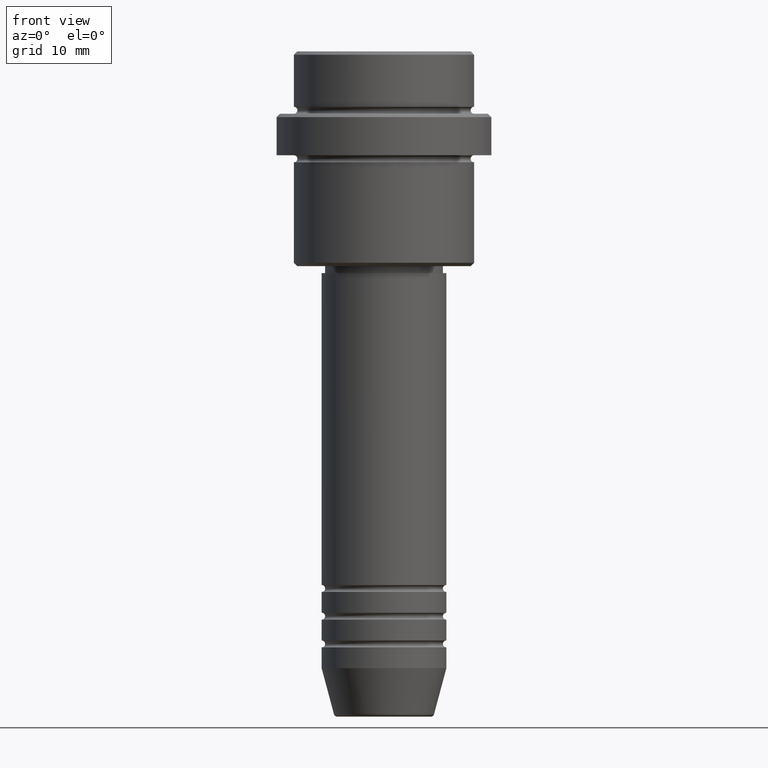
[diagram: clean part render]
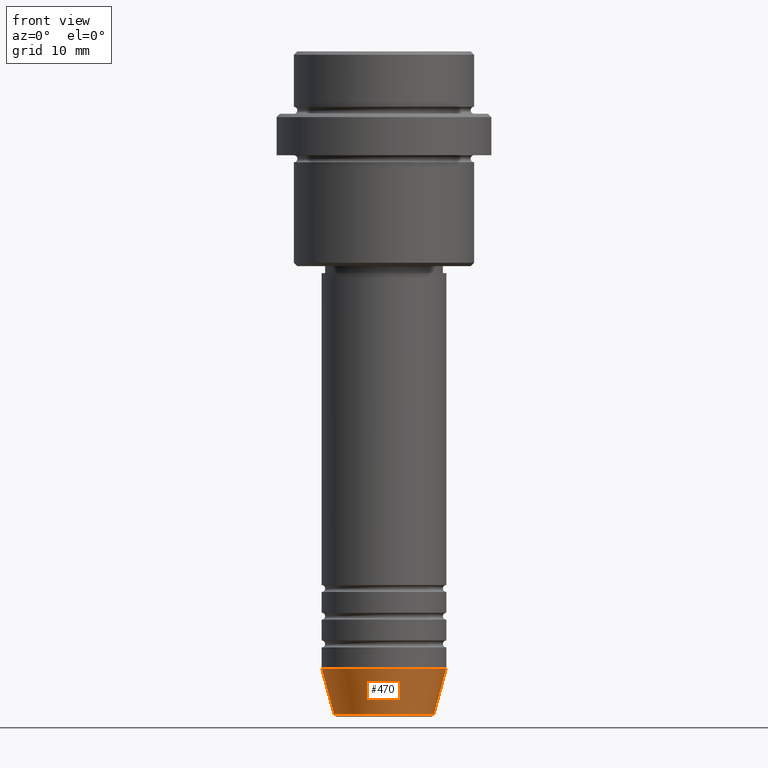
[diagram: same view with one face highlighted and labeled with its STEP entity id]
A machine part, front view. The second image highlights one B-rep face of the part: STEP entity #470.
In plain terms, the highlighted conical surface has half-angle 15 deg.
Its self-contained STEP definition (entity closure, byte-faithful):
#3 = DIRECTION ( 'NONE',  ( 0.2588190451025213501, 0.000000000000000000, 0.9659258262890680902 ) ) ;
#51 = CARTESIAN_POINT ( 'NONE',  ( -7.223655072137189492, 9.934123627281765110E-16, -95.62940952255127058 ) ) ;
#143 = AXIS2_PLACEMENT_3D ( 'NONE', #864, #1304, #309 ) ;
#236 = DIRECTION ( 'NONE',  ( -0.2588190451025213501, 3.169619151431772337E-17, 0.9659258262890680902 ) ) ;
#309 = DIRECTION ( 'NONE',  ( 1.000000000000000000, 0.000000000000000000, 0.000000000000000000 ) ) ;
#317 = VECTOR ( 'NONE', #236, 1000.000000000000000 ) ;
#362 = DIRECTION ( 'NONE',  ( -0.000000000000000000, -0.000000000000000000, 1.000000000000000000 ) ) ;
#394 = CARTESIAN_POINT ( 'NONE',  ( -9.000000000000000000, 1.102182119232617714E-15, -89.00000000000000000 ) ) ;
#398 = VERTEX_POINT ( 'NONE', #394 ) ;
#422 = FACE_OUTER_BOUND ( 'NONE', #1143, .T. ) ;
#431 = CIRCLE ( 'NONE', #143, 7.223655072137188604 ) ;
#448 = CARTESIAN_POINT ( 'NONE',  ( 7.223655072137188604, 0.000000000000000000, -95.62940952255127058 ) ) ;
#470 = ADVANCED_FACE ( 'NONE', ( #422 ), #1401, .T. ) ;
#530 = ORIENTED_EDGE ( 'NONE', *, *, #1398, .F. ) ;
#614 = VERTEX_POINT ( 'NONE', #784 ) ;
#660 = ORIENTED_EDGE ( 'NONE', *, *, #832, .T. ) ;
#683 = AXIS2_PLACEMENT_3D ( 'NONE', #1006, #362, #807 ) ;
#719 = AXIS2_PLACEMENT_3D ( 'NONE', #760, #1206, #1100 ) ;
#760 = CARTESIAN_POINT ( 'NONE',  ( 0.000000000000000000, 0.000000000000000000, -89.00000000000000000 ) ) ;
#772 = ORIENTED_EDGE ( 'NONE', *, *, #1378, .T. ) ;
#784 = CARTESIAN_POINT ( 'NONE',  ( 9.000000000000000000, 0.000000000000000000, -89.00000000000000000 ) ) ;
#807 = DIRECTION ( 'NONE',  ( 1.000000000000000000, 0.000000000000000000, 0.000000000000000000 ) ) ;
#832 = EDGE_CURVE ( 'NONE', #1012, #614, #859, .T. ) ;
#859 = LINE ( 'NONE', #1094, #1359 ) ;
#864 = CARTESIAN_POINT ( 'NONE',  ( 0.000000000000000000, 0.000000000000000000, -95.62940952255127058 ) ) ;
#954 = CIRCLE ( 'NONE', #683, 9.000000000000000000 ) ;
#1006 = CARTESIAN_POINT ( 'NONE',  ( 0.000000000000000000, 0.000000000000000000, -89.00000000000000000 ) ) ;
#1012 = VERTEX_POINT ( 'NONE', #448 ) ;
#1017 = LINE ( 'NONE', #1118, #317 ) ;
#1025 = EDGE_CURVE ( 'NONE', #1056, #398, #1017, .T. ) ;
#1056 = VERTEX_POINT ( 'NONE', #51 ) ;
#1094 = CARTESIAN_POINT ( 'NONE',  ( 9.000000000000000000, 0.000000000000000000, -89.00000000000000000 ) ) ;
#1100 = DIRECTION ( 'NONE',  ( 1.000000000000000000, 0.000000000000000000, 0.000000000000000000 ) ) ;
#1118 = CARTESIAN_POINT ( 'NONE',  ( -9.000000000000000000, 1.102182119232617714E-15, -89.00000000000000000 ) ) ;
#1143 = EDGE_LOOP ( 'NONE', ( #1179, #772, #660, #530 ) ) ;
#1179 = ORIENTED_EDGE ( 'NONE', *, *, #1025, .F. ) ;
#1206 = DIRECTION ( 'NONE',  ( -0.000000000000000000, -0.000000000000000000, 1.000000000000000000 ) ) ;
#1304 = DIRECTION ( 'NONE',  ( -0.000000000000000000, -0.000000000000000000, 1.000000000000000000 ) ) ;
#1359 = VECTOR ( 'NONE', #3, 1000.000000000000000 ) ;
#1378 = EDGE_CURVE ( 'NONE', #1056, #1012, #431, .T. ) ;
#1398 = EDGE_CURVE ( 'NONE', #398, #614, #954, .T. ) ;
#1401 = CONICAL_SURFACE ( 'NONE', #719, 9.000000000000000000, 0.2617993877991500740 ) ;